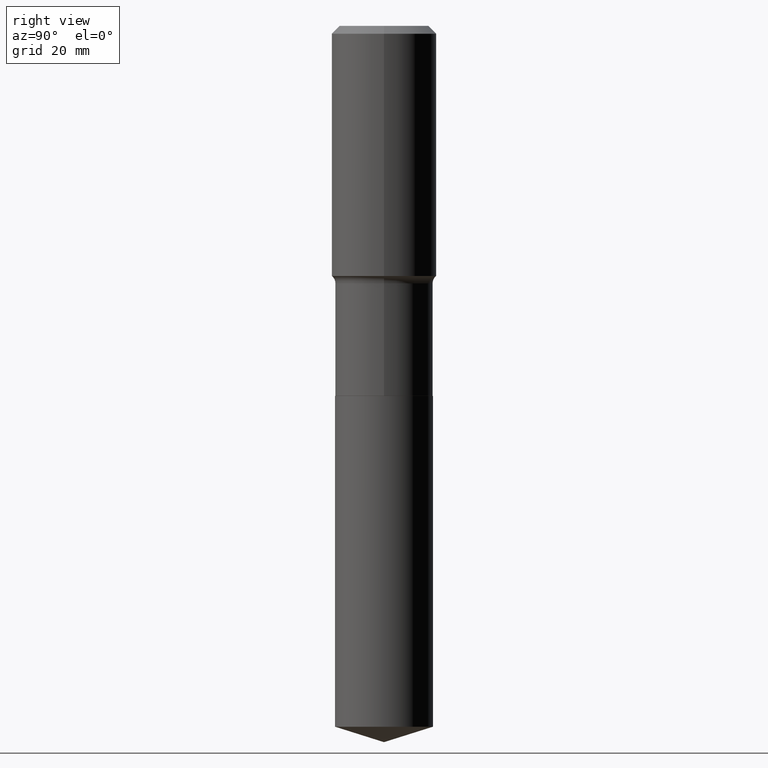
[diagram: clean part render]
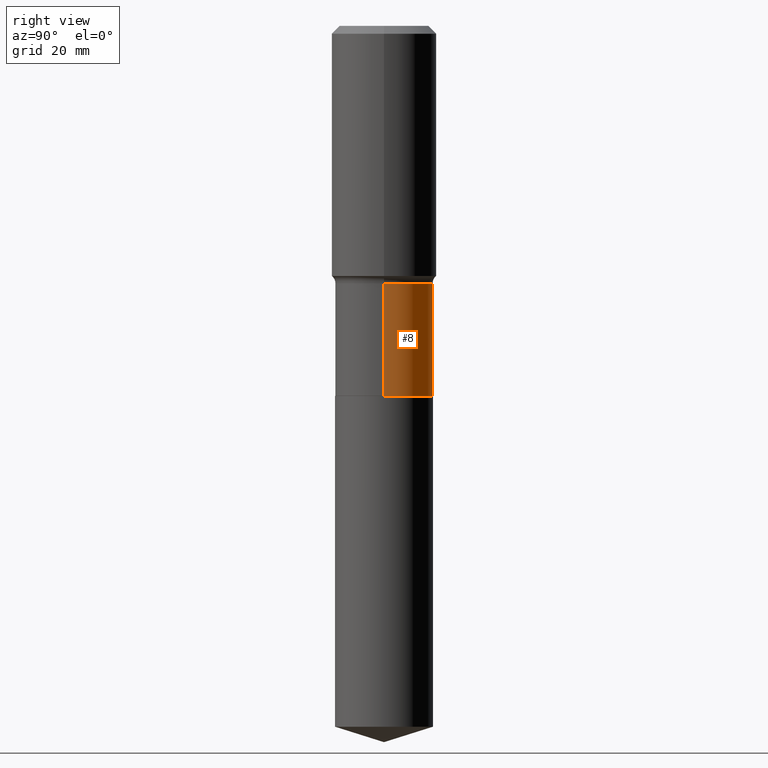
[diagram: same view with one face highlighted and labeled with its STEP entity id]
A machine part, right view. The second image highlights one B-rep face of the part: STEP entity #8.
In plain terms, the highlighted cylindrical surface (partial cylindrical patch) has radius 10.2502 mm, axis along (-0, 0, 1).
Its self-contained STEP definition (entity closure, byte-faithful):
#8 = ADVANCED_FACE ( 'NONE', ( #249 ), #12, .T. ) ;
#12 = CYLINDRICAL_SURFACE ( 'NONE', #182, 0.4035500000000001308 ) ;
#17 = VECTOR ( 'NONE', #295, 39.37007874015748143 ) ;
#25 = CARTESIAN_POINT ( 'NONE',  ( 0.4035500000000002419, -1.346943670898907832E-14, -3.050699999999999967 ) ) ;
#32 = EDGE_LOOP ( 'NONE', ( #229, #379, #330, #278 ) ) ;
#61 = CARTESIAN_POINT ( 'NONE',  ( 5.191730275531042941E-29, -7.412414882363994454E-15, -2.122999999999999332 ) ) ;
#70 = CARTESIAN_POINT ( 'NONE',  ( -0.4035500000000001308, 2.867395210159885230E-15, -1.985036255672368073E-29 ) ) ;
#74 = VERTEX_POINT ( 'NONE', #25 ) ;
#87 = CARTESIAN_POINT ( 'NONE',  ( 0.4035500000000000753, -1.023038947094428886E-14, -2.122999999999999332 ) ) ;
#91 = CARTESIAN_POINT ( 'NONE',  ( -0.4035500000000003529, -6.164543291226502771E-15, -3.050699999999999967 ) ) ;
#102 = EDGE_CURVE ( 'NONE', #74, #463, #470, .T. ) ;
#136 = LINE ( 'NONE', #217, #17 ) ;
#142 = EDGE_CURVE ( 'NONE', #407, #458, #310, .T. ) ;
#182 = AXIS2_PLACEMENT_3D ( 'NONE', #403, #477, #431 ) ;
#186 = AXIS2_PLACEMENT_3D ( 'NONE', #61, #218, #332 ) ;
#217 = CARTESIAN_POINT ( 'NONE',  ( 0.4035500000000001308, -2.817974588580293613E-15, 1.967781137872450427E-29 ) ) ;
#218 = DIRECTION ( 'NONE',  ( -2.445468806185136597E-29, 3.491481338843145583E-15, 1.000000000000000000 ) ) ;
#222 = EDGE_CURVE ( 'NONE', #463, #458, #230, .T. ) ;
#229 = ORIENTED_EDGE ( 'NONE', *, *, #102, .T. ) ;
#230 = LINE ( 'NONE', #70, #471 ) ;
#249 = FACE_OUTER_BOUND ( 'NONE', #32, .T. ) ;
#266 = AXIS2_PLACEMENT_3D ( 'NONE', #296, #316, #439 ) ;
#278 = ORIENTED_EDGE ( 'NONE', *, *, #374, .F. ) ;
#295 = DIRECTION ( 'NONE',  ( -2.445468806185136877E-29, 3.491481338843145188E-15, 1.000000000000000000 ) ) ;
#296 = CARTESIAN_POINT ( 'NONE',  ( 7.460391687028996766E-29, -1.065146212040878392E-14, -3.050699999999999967 ) ) ;
#310 = CIRCLE ( 'NONE', #186, 0.4035500000000000753 ) ;
#316 = DIRECTION ( 'NONE',  ( -2.445468806185136597E-29, 3.491481338843145583E-15, 1.000000000000000000 ) ) ;
#330 = ORIENTED_EDGE ( 'NONE', *, *, #142, .F. ) ;
#332 = DIRECTION ( 'NONE',  ( 1.000000000000000000, -6.982962677686265922E-15, 0.000000000000000000 ) ) ;
#356 = DIRECTION ( 'NONE',  ( -2.445468806185136877E-29, 3.491481338843145188E-15, 1.000000000000000000 ) ) ;
#374 = EDGE_CURVE ( 'NONE', #74, #407, #136, .T. ) ;
#379 = ORIENTED_EDGE ( 'NONE', *, *, #222, .T. ) ;
#403 = CARTESIAN_POINT ( 'NONE',  ( 0.000000000000000000, 0.000000000000000000, 0.000000000000000000 ) ) ;
#407 = VERTEX_POINT ( 'NONE', #87 ) ;
#431 = DIRECTION ( 'NONE',  ( 1.000000000000000000, -6.982962677686265922E-15, 4.876176775795935793E-29 ) ) ;
#435 = CARTESIAN_POINT ( 'NONE',  ( -0.4035500000000000753, -6.164543291226505138E-15, -2.122999999999999332 ) ) ;
#439 = DIRECTION ( 'NONE',  ( 1.000000000000000000, -6.982962677686265922E-15, 0.000000000000000000 ) ) ;
#458 = VERTEX_POINT ( 'NONE', #435 ) ;
#463 = VERTEX_POINT ( 'NONE', #91 ) ;
#470 = CIRCLE ( 'NONE', #266, 0.4035500000000002419 ) ;
#471 = VECTOR ( 'NONE', #356, 39.37007874015748143 ) ;
#477 = DIRECTION ( 'NONE',  ( -2.445468806185136597E-29, 3.491481338843145583E-15, 1.000000000000000000 ) ) ;